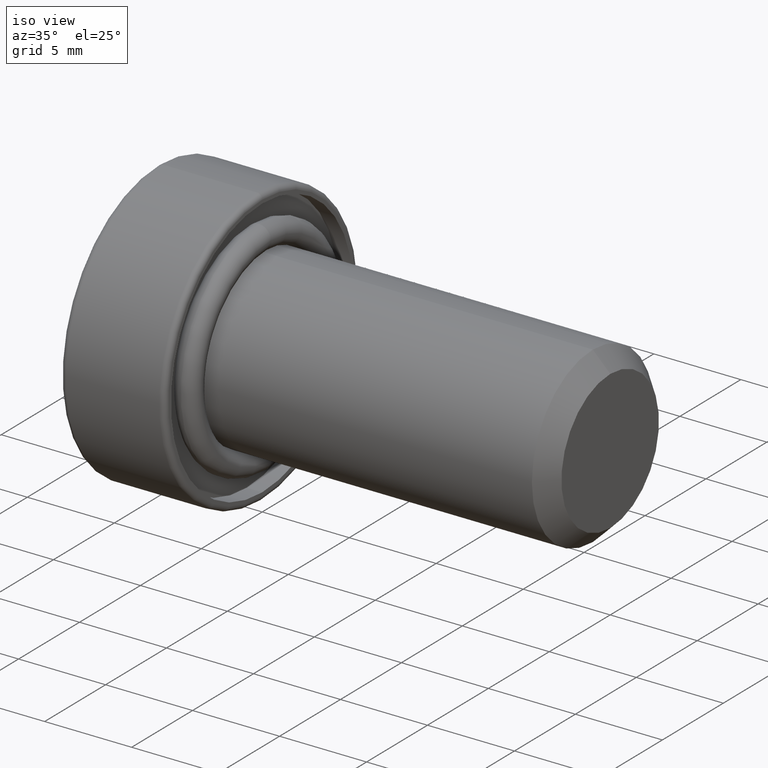
[diagram: clean part render]
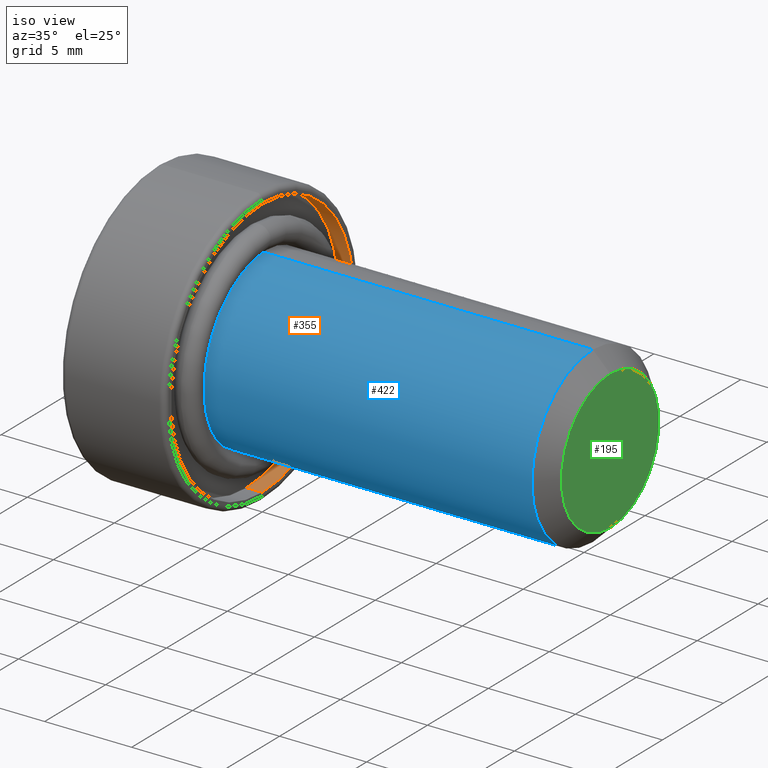
[diagram: same view with three faces highlighted in distinct colors, each labeled with its STEP entity id]
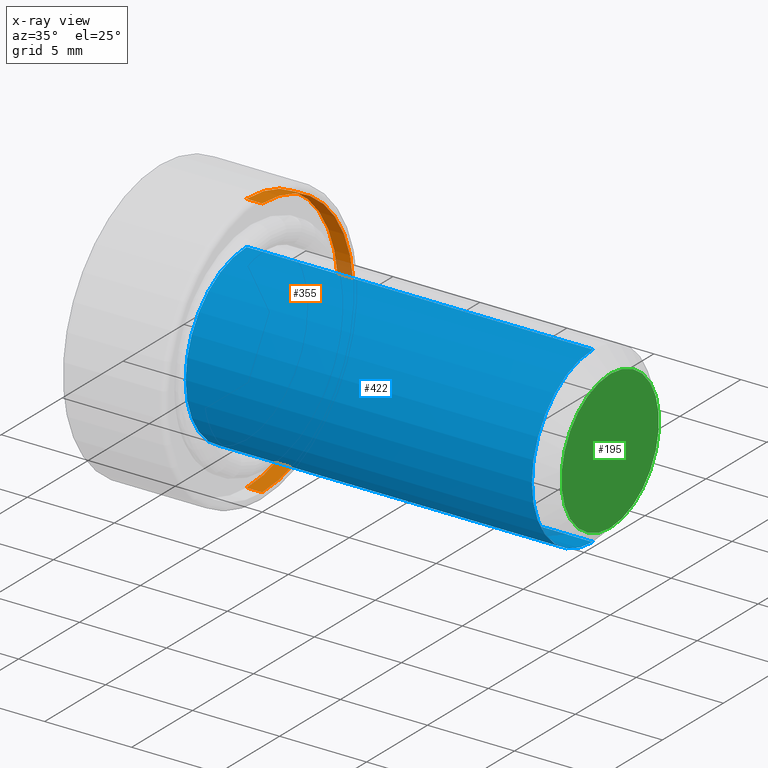
[diagram: x-ray of the same camera — body ghosted, the three highlighted faces saturated]
A machine part, iso view with three faces highlighted in distinct colors.
The next image is the same camera in x-ray (body ghosted, the three faces saturated) — at least one of them is partly hidden behind the body in this view.
Their STEP definitions:

[orange] entity #355 — the highlighted cylindrical surface (partial cylindrical patch) has radius 7.5 mm, axis along (1, 0, 0).
#42 = ORIENTED_EDGE ( 'NONE', *, *, #815, .F. ) ;
#47 = VERTEX_POINT ( 'NONE', #561 ) ;
#94 = DIRECTION ( 'NONE',  ( 1.000000000000000000, 0.0000000000000000000, 0.0000000000000000000 ) ) ;
#136 = DIRECTION ( 'NONE',  ( 0.0000000000000000000, 0.0000000000000000000, -1.000000000000000000 ) ) ;
#153 = CARTESIAN_POINT ( 'NONE',  ( -0.9000000000000000200, 0.0000000000000000000, 0.0000000000000000000 ) ) ;
#161 = DIRECTION ( 'NONE',  ( 1.000000000000000000, -0.0000000000000000000, -0.0000000000000000000 ) ) ;
#176 = FACE_OUTER_BOUND ( 'NONE', #354, .T. ) ;
#179 = AXIS2_PLACEMENT_3D ( 'NONE', #535, #468, #708 ) ;
#253 = DIRECTION ( 'NONE',  ( 0.0000000000000000000, 0.0000000000000000000, -1.000000000000000000 ) ) ;
#257 = CARTESIAN_POINT ( 'NONE',  ( -0.9000000000000000200, 0.0000000000000000000, -7.500000000000000000 ) ) ;
#264 = ORIENTED_EDGE ( 'NONE', *, *, #665, .F. ) ;
#271 = CARTESIAN_POINT ( 'NONE',  ( 0.0000000000000000000, 9.184850993605147900E-016, 7.500000000000000000 ) ) ;
#293 = AXIS2_PLACEMENT_3D ( 'NONE', #584, #774, #253 ) ;
#298 = VERTEX_POINT ( 'NONE', #257 ) ;
#319 = CARTESIAN_POINT ( 'NONE',  ( -0.9000000000000000200, 9.184850993605147900E-016, 7.500000000000000000 ) ) ;
#354 = EDGE_LOOP ( 'NONE', ( #264, #42, #417, #797 ) ) ;
#355 = ADVANCED_FACE ( 'NONE', ( #176 ), #655, .F. ) ;
#367 = VECTOR ( 'NONE', #161, 1000.000000000000000 ) ;
#405 = CARTESIAN_POINT ( 'NONE',  ( -0.9000000000000000200, 0.0000000000000000000, -7.500000000000000000 ) ) ;
#417 = ORIENTED_EDGE ( 'NONE', *, *, #506, .T. ) ;
#437 = AXIS2_PLACEMENT_3D ( 'NONE', #153, #94, #136 ) ;
#449 = DIRECTION ( 'NONE',  ( 1.000000000000000000, -0.0000000000000000000, -0.0000000000000000000 ) ) ;
#463 = CIRCLE ( 'NONE', #179, 7.500000000000000000 ) ;
#468 = DIRECTION ( 'NONE',  ( 1.000000000000000000, 0.0000000000000000000, 0.0000000000000000000 ) ) ;
#473 = VERTEX_POINT ( 'NONE', #767 ) ;
#506 = EDGE_CURVE ( 'NONE', #298, #473, #730, .T. ) ;
#535 = CARTESIAN_POINT ( 'NONE',  ( 0.0000000000000000000, 0.0000000000000000000, 0.0000000000000000000 ) ) ;
#555 = VECTOR ( 'NONE', #449, 1000.000000000000000 ) ;
#561 = CARTESIAN_POINT ( 'NONE',  ( -0.9000000000000000200, 9.184850993605147900E-016, 7.500000000000000000 ) ) ;
#564 = CIRCLE ( 'NONE', #437, 7.500000000000000000 ) ;
#584 = CARTESIAN_POINT ( 'NONE',  ( -0.9000000000000000200, 0.0000000000000000000, 0.0000000000000000000 ) ) ;
#655 = CYLINDRICAL_SURFACE ( 'NONE', #293, 7.500000000000000000 ) ;
#665 = EDGE_CURVE ( 'NONE', #47, #679, #732, .T. ) ;
#679 = VERTEX_POINT ( 'NONE', #271 ) ;
#708 = DIRECTION ( 'NONE',  ( 0.0000000000000000000, 0.0000000000000000000, -1.000000000000000000 ) ) ;
#730 = LINE ( 'NONE', #405, #555 ) ;
#732 = LINE ( 'NONE', #319, #367 ) ;
#767 = CARTESIAN_POINT ( 'NONE',  ( 0.0000000000000000000, 0.0000000000000000000, -7.500000000000000000 ) ) ;
#768 = EDGE_CURVE ( 'NONE', #473, #679, #463, .T. ) ;
#774 = DIRECTION ( 'NONE',  ( 1.000000000000000000, -0.0000000000000000000, -0.0000000000000000000 ) ) ;
#797 = ORIENTED_EDGE ( 'NONE', *, *, #768, .T. ) ;
#815 = EDGE_CURVE ( 'NONE', #298, #47, #564, .T. ) ;

[blue] entity #422 — the highlighted cylindrical surface (partial cylindrical patch) has radius 5 mm, axis along (-1, -0, -0).
#36 = CARTESIAN_POINT ( 'NONE',  ( 20.00000000000000000, 0.0000000000000000000, 0.0000000000000000000 ) ) ;
#50 = CARTESIAN_POINT ( 'NONE',  ( 19.00000000000000000, 0.0000000000000000000, 0.0000000000000000000 ) ) ;
#67 = VERTEX_POINT ( 'NONE', #757 ) ;
#77 = DIRECTION ( 'NONE',  ( 0.0000000000000000000, 0.0000000000000000000, 1.000000000000000000 ) ) ;
#100 = AXIS2_PLACEMENT_3D ( 'NONE', #50, #178, #486 ) ;
#104 = CARTESIAN_POINT ( 'NONE',  ( 19.00000000000000000, 0.0000000000000000000, 5.000000000000000000 ) ) ;
#116 = VERTEX_POINT ( 'NONE', #687 ) ;
#128 = LINE ( 'NONE', #511, #784 ) ;
#163 = ORIENTED_EDGE ( 'NONE', *, *, #493, .T. ) ;
#166 = DIRECTION ( 'NONE',  ( -1.000000000000000000, -0.0000000000000000000, -0.0000000000000000000 ) ) ;
#178 = DIRECTION ( 'NONE',  ( -1.000000000000000000, 0.0000000000000000000, 0.0000000000000000000 ) ) ;
#186 = EDGE_CURVE ( 'NONE', #67, #751, #813, .T. ) ;
#227 = CARTESIAN_POINT ( 'NONE',  ( -0.9000000000000000200, 0.0000000000000000000, 5.000000000000000000 ) ) ;
#267 = CIRCLE ( 'NONE', #277, 5.000000000000000000 ) ;
#277 = AXIS2_PLACEMENT_3D ( 'NONE', #461, #459, #347 ) ;
#297 = FACE_OUTER_BOUND ( 'NONE', #792, .T. ) ;
#329 = CARTESIAN_POINT ( 'NONE',  ( 20.00000000000000000, 0.0000000000000000000, 5.000000000000000000 ) ) ;
#347 = DIRECTION ( 'NONE',  ( 0.0000000000000000000, 0.0000000000000000000, -1.000000000000000000 ) ) ;
#381 = ORIENTED_EDGE ( 'NONE', *, *, #721, .F. ) ;
#413 = VECTOR ( 'NONE', #416, 1000.000000000000000 ) ;
#416 = DIRECTION ( 'NONE',  ( -1.000000000000000000, -0.0000000000000000000, -0.0000000000000000000 ) ) ;
#422 = ADVANCED_FACE ( 'NONE', ( #297 ), #790, .T. ) ;
#459 = DIRECTION ( 'NONE',  ( 1.000000000000000000, 0.0000000000000000000, 0.0000000000000000000 ) ) ;
#461 = CARTESIAN_POINT ( 'NONE',  ( -0.9000000000000000200, 0.0000000000000000000, 0.0000000000000000000 ) ) ;
#465 = AXIS2_PLACEMENT_3D ( 'NONE', #36, #166, #77 ) ;
#486 = DIRECTION ( 'NONE',  ( 0.0000000000000000000, 0.0000000000000000000, -1.000000000000000000 ) ) ;
#493 = EDGE_CURVE ( 'NONE', #751, #494, #748, .T. ) ;
#494 = VERTEX_POINT ( 'NONE', #227 ) ;
#511 = CARTESIAN_POINT ( 'NONE',  ( 20.00000000000000000, 6.123233995736766300E-016, -5.000000000000000000 ) ) ;
#560 = EDGE_CURVE ( 'NONE', #494, #116, #267, .T. ) ;
#651 = DIRECTION ( 'NONE',  ( -1.000000000000000000, -0.0000000000000000000, -0.0000000000000000000 ) ) ;
#687 = CARTESIAN_POINT ( 'NONE',  ( -0.9000000000000000200, 6.123233995736766300E-016, -5.000000000000000000 ) ) ;
#721 = EDGE_CURVE ( 'NONE', #67, #116, #128, .T. ) ;
#722 = ORIENTED_EDGE ( 'NONE', *, *, #186, .T. ) ;
#748 = LINE ( 'NONE', #329, #413 ) ;
#751 = VERTEX_POINT ( 'NONE', #104 ) ;
#757 = CARTESIAN_POINT ( 'NONE',  ( 19.00000000000000000, 6.123233995736766300E-016, -5.000000000000000000 ) ) ;
#784 = VECTOR ( 'NONE', #651, 1000.000000000000000 ) ;
#790 = CYLINDRICAL_SURFACE ( 'NONE', #465, 5.000000000000000000 ) ;
#792 = EDGE_LOOP ( 'NONE', ( #381, #722, #163, #806 ) ) ;
#806 = ORIENTED_EDGE ( 'NONE', *, *, #560, .T. ) ;
#813 = CIRCLE ( 'NONE', #100, 5.000000000000000000 ) ;

[green] entity #195 — the highlighted planar face has unit normal (1, 0, 0).
#93 = VERTEX_POINT ( 'NONE', #248 ) ;
#137 = CIRCLE ( 'NONE', #424, 4.000000000000007100 ) ;
#157 = CARTESIAN_POINT ( 'NONE',  ( 20.00000000000000000, 0.0000000000000000000, 0.0000000000000000000 ) ) ;
#195 = ADVANCED_FACE ( 'NONE', ( #800 ), #741, .T. ) ;
#234 = ORIENTED_EDGE ( 'NONE', *, *, #482, .T. ) ;
#248 = CARTESIAN_POINT ( 'NONE',  ( 20.00000000000000000, 0.0000000000000000000, 4.000000000000007100 ) ) ;
#261 = CIRCLE ( 'NONE', #672, 4.000000000000007100 ) ;
#283 = ORIENTED_EDGE ( 'NONE', *, *, #427, .T. ) ;
#286 = DIRECTION ( 'NONE',  ( 1.000000000000000000, 0.0000000000000000000, 0.0000000000000000000 ) ) ;
#306 = AXIS2_PLACEMENT_3D ( 'NONE', #671, #674, #746 ) ;
#411 = CARTESIAN_POINT ( 'NONE',  ( 20.00000000000000000, 0.0000000000000000000, 0.0000000000000000000 ) ) ;
#424 = AXIS2_PLACEMENT_3D ( 'NONE', #411, #286, #604 ) ;
#427 = EDGE_CURVE ( 'NONE', #734, #93, #137, .T. ) ;
#482 = EDGE_CURVE ( 'NONE', #93, #734, #261, .T. ) ;
#566 = EDGE_LOOP ( 'NONE', ( #234, #283 ) ) ;
#603 = CARTESIAN_POINT ( 'NONE',  ( 20.00000000000000000, 5.510910596163093500E-016, -4.000000000000007100 ) ) ;
#604 = DIRECTION ( 'NONE',  ( 0.0000000000000000000, 0.0000000000000000000, -1.000000000000000000 ) ) ;
#671 = CARTESIAN_POINT ( 'NONE',  ( 20.00000000000000000, 0.0000000000000000000, 0.0000000000000000000 ) ) ;
#672 = AXIS2_PLACEMENT_3D ( 'NONE', #157, #713, #788 ) ;
#674 = DIRECTION ( 'NONE',  ( 1.000000000000000000, 0.0000000000000000000, 0.0000000000000000000 ) ) ;
#713 = DIRECTION ( 'NONE',  ( 1.000000000000000000, 0.0000000000000000000, 0.0000000000000000000 ) ) ;
#734 = VERTEX_POINT ( 'NONE', #603 ) ;
#741 = PLANE ( 'NONE',  #306 ) ;
#746 = DIRECTION ( 'NONE',  ( 0.0000000000000000000, 0.0000000000000000000, -1.000000000000000000 ) ) ;
#788 = DIRECTION ( 'NONE',  ( 0.0000000000000000000, 0.0000000000000000000, -1.000000000000000000 ) ) ;
#800 = FACE_OUTER_BOUND ( 'NONE', #566, .T. ) ;